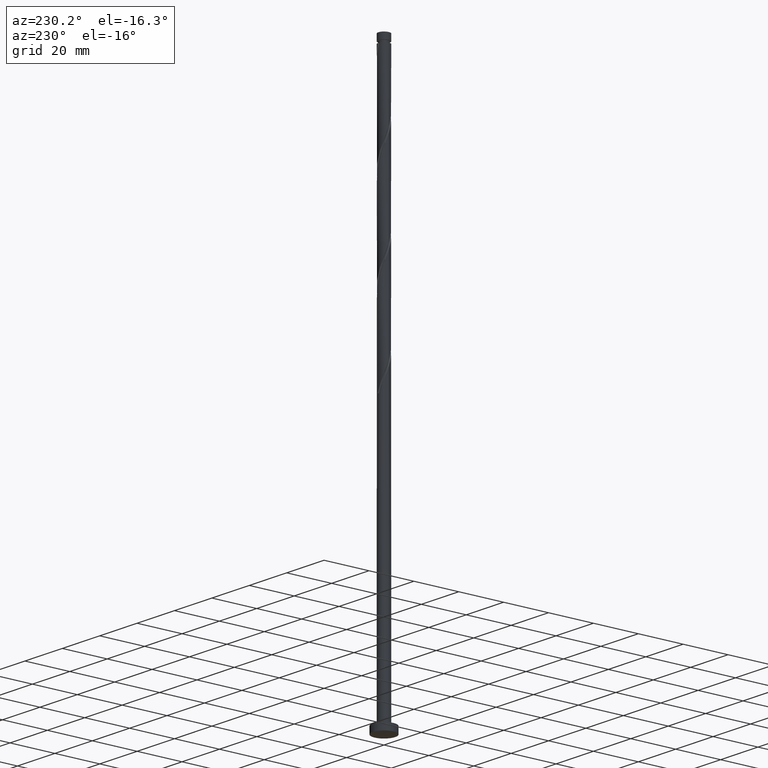
[diagram: clean part render]
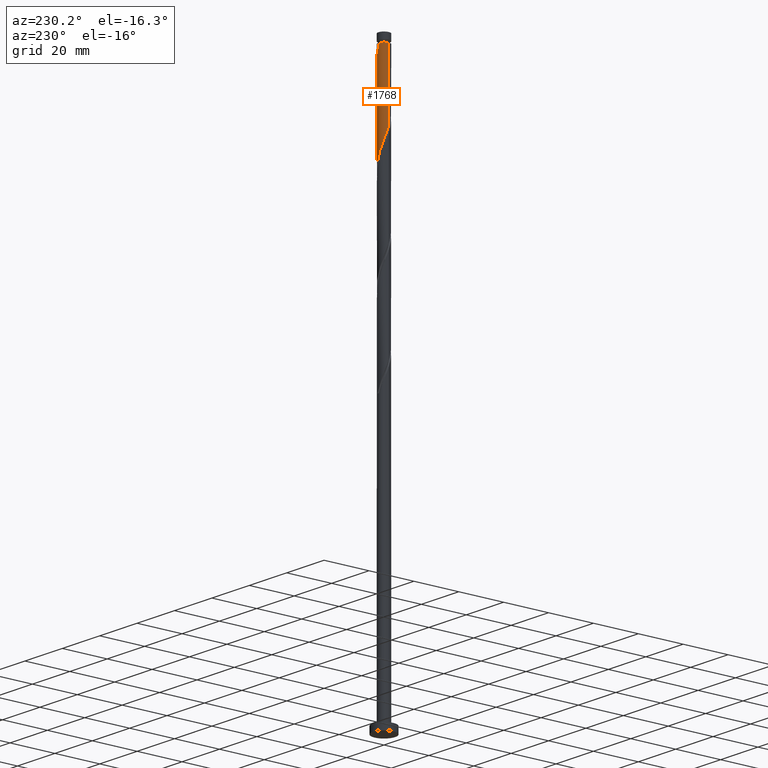
[diagram: same view with one face highlighted and labeled with its STEP entity id]
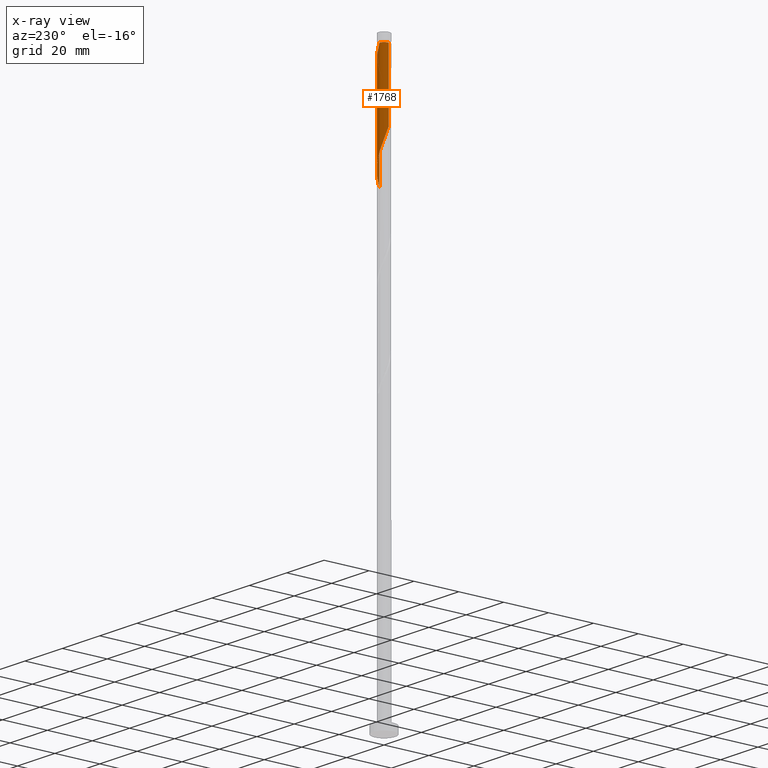
[diagram: x-ray of the same camera — body ghosted, the highlighted face saturated]
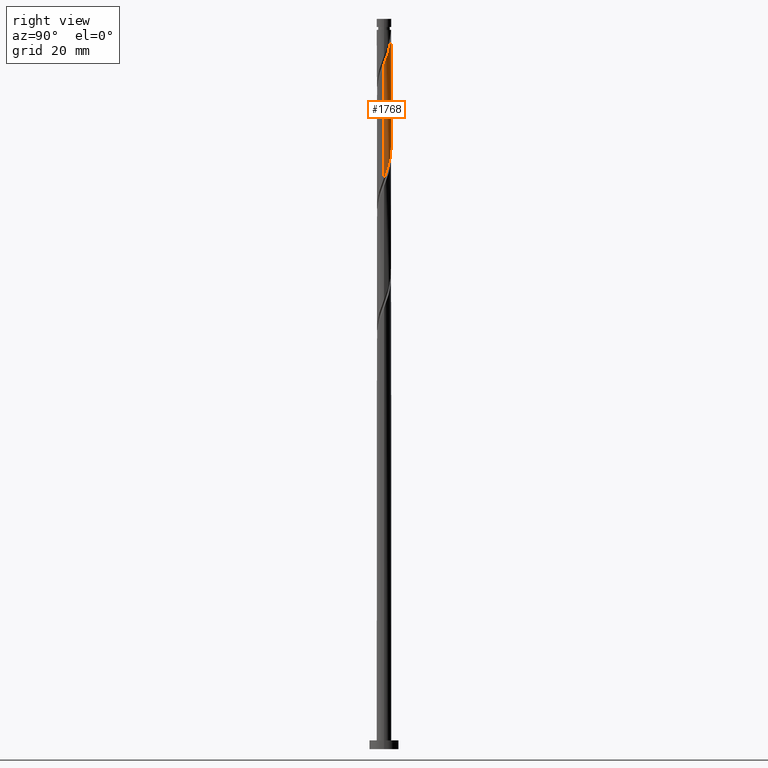
[diagram: same view with one face highlighted and labeled with its STEP entity id]
A machine part, auxiliary view. The second image highlights one B-rep face of the part: STEP entity #1768.
The next image is the same camera in x-ray: the body ghosted, the highlighted face saturated — about 0% of this face is hidden behind the body in this view.
A second angle (right view) of the same face is appended — the face is thin or edge-on in the first view.
In plain terms, the highlighted cylindrical surface (edge-blend (fillet) strip) has radius 2.5 mm, axis along (-0, -0, -1).
Its self-contained STEP definition (entity closure, byte-faithful):
#3 = CARTESIAN_POINT ( 'NONE',  ( 2.467203498451233212, 0.4036172657728990809, 196.5364304092906309 ) ) ;
#70 = CARTESIAN_POINT ( 'NONE',  ( 1.952405639219642719, 1.590678418946936290, 239.0043791272393605 ) ) ;
#143 = CARTESIAN_POINT ( 'NONE',  ( 0.000000000000000000, 0.000000000000000000, 246.2159175887778133 ) ) ;
#150 = CARTESIAN_POINT ( 'NONE',  ( 1.814417076588191957, 1.746435307918769331, 200.5428406657008509 ) ) ;
#174 = FACE_OUTER_BOUND ( 'NONE', #1698, .T. ) ;
#211 = CARTESIAN_POINT ( 'NONE',  ( -0.2000098596587720490, 2.510406673947363831, 245.4146355374958262 ) ) ;
#233 = VERTEX_POINT ( 'NONE', #617 ) ;
#238 = CARTESIAN_POINT ( 'NONE',  ( -1.952405639219638278, 1.590678418946934958, 211.7607893836495805 ) ) ;
#255 = CARTESIAN_POINT ( 'NONE',  ( -2.467994458320922568, 0.5011476491587928406, 214.9659175887778133 ) ) ;
#281 = CARTESIAN_POINT ( 'NONE',  ( 2.179642739761230352, 1.261468643909282594, 198.9402765631367629 ) ) ;
#295 = CARTESIAN_POINT ( 'NONE',  ( -2.499999999999981348, 0.000000000000000000, 246.2159175887778133 ) ) ;
#304 = CIRCLE ( 'NONE', #515, 2.499999999999981348 ) ;
#312 = CARTESIAN_POINT ( 'NONE',  ( 2.500000000000000444, 0.2031410963426076577, 196.0002068686846997 ) ) ;
#315 = VERTEX_POINT ( 'NONE', #295 ) ;
#334 = CARTESIAN_POINT ( 'NONE',  ( 2.500000000000004441, -5.309358179316672205E-16, 234.4713290462192674 ) ) ;
#378 = CARTESIAN_POINT ( 'NONE',  ( -2.372170500257938741, 0.7891812958414540224, 214.1646355374957409 ) ) ;
#406 = VERTEX_POINT ( 'NONE', #1410 ) ;
#416 = CARTESIAN_POINT ( 'NONE',  ( 2.500000000000000000, 3.061616997868383141E-16, 250.0000000000000000 ) ) ;
#422 = AXIS2_PLACEMENT_3D ( 'NONE', #1568, #880, #608 ) ;
#434 = CARTESIAN_POINT ( 'NONE',  ( -1.252271117205184581, 2.163750690124367715, 209.3569432298034485 ) ) ;
#444 = ORIENTED_EDGE ( 'NONE', *, *, #820, .F. ) ;
#456 = VERTEX_POINT ( 'NONE', #1430 ) ;
#485 = CARTESIAN_POINT ( 'NONE',  ( 0.6980629606895840666, 2.400564121808312024, 243.0107893836496373 ) ) ;
#515 = AXIS2_PLACEMENT_3D ( 'NONE', #143, #571, #1694 ) ;
#571 = DIRECTION ( 'NONE',  ( -0.000000000000000000, -0.000000000000000000, -1.000000000000000000 ) ) ;
#580 = EDGE_CURVE ( 'NONE', #456, #1135, #1789, .T. ) ;
#587 = CARTESIAN_POINT ( 'NONE',  ( -0.1032859222543189709, 2.497865492428299472, 206.1518150246752157 ) ) ;
#595 = CARTESIAN_POINT ( 'NONE',  ( -0.4065817041674112953, 2.485324310909239998, 206.9530970759572597 ) ) ;
#606 = CARTESIAN_POINT ( 'NONE',  ( 1.069360832754715940, 2.259749412959352277, 202.9466868195470397 ) ) ;
#608 = DIRECTION ( 'NONE',  ( -1.000000000000000000, 0.000000000000000000, 0.000000000000000000 ) ) ;
#617 = CARTESIAN_POINT ( 'NONE',  ( -2.499999999999999556, 4.620637209858866422E-14, 216.2938394646694746 ) ) ;
#667 = CARTESIAN_POINT ( 'NONE',  ( -2.276346542194956246, 1.077214942524114649, 213.3633534862136969 ) ) ;
#709 = CARTESIAN_POINT ( 'NONE',  ( 1.579080582324886128, 1.938170403892417237, 201.3441227169829233 ) ) ;
#716 = CARTESIAN_POINT ( 'NONE',  ( -0.6980629606895805139, 2.400564121808307583, 207.7543791272393321 ) ) ;
#744 = CYLINDRICAL_SURFACE ( 'NONE', #422, 2.500000000000000000 ) ;
#794 = CARTESIAN_POINT ( 'NONE',  ( 1.733701828209132767, 1.801187933244148498, 239.8056611785214045 ) ) ;
#802 = VECTOR ( 'NONE', #1672, 1000.000000000000000 ) ;
#803 = CARTESIAN_POINT ( 'NONE',  ( -1.733701828209129658, 1.801187933244146722, 210.9595073323675365 ) ) ;
#820 = EDGE_CURVE ( 'NONE', #315, #233, #1392, .T. ) ;
#845 = CARTESIAN_POINT ( 'NONE',  ( 1.997029908174710933, 1.503951975914025851, 199.7415586144188637 ) ) ;
#853 = CARTESIAN_POINT ( 'NONE',  ( 2.298919114669785380, 0.9823293257385155020, 198.1389945118547473 ) ) ;
#863 = CARTESIAN_POINT ( 'NONE',  ( 2.418195489578342183, 0.7031900075677459672, 197.3377124605727033 ) ) ;
#870 = CARTESIAN_POINT ( 'NONE',  ( -0.9895442172117494550, 2.315803932707376500, 208.5556611785213761 ) ) ;
#878 = CARTESIAN_POINT ( 'NONE',  ( 2.499999999999999556, 2.826672382791151800E-15, 195.4605061313363592 ) ) ;
#880 = DIRECTION ( 'NONE',  ( -0.000000000000000000, -0.000000000000000000, -1.000000000000000000 ) ) ;
#893 = CARTESIAN_POINT ( 'NONE',  ( 2.467994458320927009, 0.5011476491587928406, 235.7992509221111561 ) ) ;
#902 = CARTESIAN_POINT ( 'NONE',  ( 2.276346542194961131, 1.077214942524115093, 237.4018150246752725 ) ) ;
#911 = CARTESIAN_POINT ( 'NONE',  ( 2.372170500257943626, 0.7891812958414528012, 236.6005329733932001 ) ) ;
#938 = CARTESIAN_POINT ( 'NONE',  ( -2.492102982822523849, 0.1985515625903713222, 215.7671996400598289 ) ) ;
#973 = CARTESIAN_POINT ( 'NONE',  ( -2.499999999999999556, 4.620637209858866422E-14, 216.2938394646694746 ) ) ;
#975 = EDGE_CURVE ( 'NONE', #456, #406, #1682, .T. ) ;
#986 = EDGE_CURVE ( 'NONE', #233, #406, #1094, .T. ) ;
#999 = CARTESIAN_POINT ( 'NONE',  ( 1.343744088061578079, 2.129905499866068030, 202.1454047682649673 ) ) ;
#1030 = CARTESIAN_POINT ( 'NONE',  ( 0.4065817041674135157, 2.485324310909244883, 243.8120714349316813 ) ) ;
#1056 = CARTESIAN_POINT ( 'NONE',  ( 0.1032859222543218852, 2.497865492428304357, 244.6133534862137822 ) ) ;
#1062 = CARTESIAN_POINT ( 'NONE',  ( -0.4974937185533237494, 2.450000000000002842, 246.2159175887778133 ) ) ;
#1069 = CARTESIAN_POINT ( 'NONE',  ( 2.500000000000004885, 0.09943282584190055173, 234.7354999618521845 ) ) ;
#1094 =( BOUNDED_CURVE ( )  B_SPLINE_CURVE ( 2, ( #973, #1096, #938, #255, #378, #667, #1220, #238, #803, #1579, #434, #870, #716, #595, #587, #1549, #1122, #1834, #606, #999, #709, #150, #845, #281, #853, #863, #3, #312, #878 ),
 .UNSPECIFIED., .F., .T. ) 
 B_SPLINE_CURVE_WITH_KNOTS ( ( 3, 2, 2, 2, 2, 2, 2, 2, 2, 2, 2, 2, 2, 2, 3 ),
 ( 0.4295271625973843266, 0.4326923076923077094, 0.4423076923076922906, 0.4519230769230769273, 0.4615384615384615641, 0.4711538461538461453, 0.4807692307692307820, 0.4903846153846153633, 0.5000000000000000000, 0.5096153846153845812, 0.5192307692307692735, 0.5288461538461538547, 0.5384615384615384359, 0.5480769230769231282, 0.5545271625973834384 ),
 .UNSPECIFIED. ) 
 CURVE ( )  GEOMETRIC_REPRESENTATION_ITEM ( )  RATIONAL_B_SPLINE_CURVE ( ( 0.9061636035682938406, 0.9069090390690828229, 0.9090909090909385926, 0.9024626128164420225, 0.9090909090909385926, 0.9024626128164420225, 0.9090909090909385926, 0.9024626128164420225, 0.9090909090909385926, 0.9024626128164420225, 0.9090909090909385926, 0.9024626128164420225, 0.9090909090909385926, 0.9024626128164420225, 0.9090909090909385926, 0.9024626128164420225, 0.9090909090909385926, 0.9024626128164420225, 0.9090909090909385926, 0.9024626128164420225, 0.9090909090909385926, 0.9024626128164420225, 0.9090909090909385926, 0.9024626128164420225, 0.9090909090909385926, 0.9024626128164420225, 0.9090909090909385926, 0.9046444828382984582, 0.9061636035682933965 ) ) 
 REPRESENTATION_ITEM ( '' )  );
#1096 = CARTESIAN_POINT ( 'NONE',  ( -2.499999999999996891, 0.09943282584195486939, 216.0296685490365860 ) ) ;
#1122 = CARTESIAN_POINT ( 'NONE',  ( 0.4974937185533122586, 2.449999999999999289, 204.5492509221111561 ) ) ;
#1135 = VERTEX_POINT ( 'NONE', #1062 ) ;
#1202 = CARTESIAN_POINT ( 'NONE',  ( -0.4974937185533237494, 2.450000000000002842, 246.2159175887778133 ) ) ;
#1210 = CARTESIAN_POINT ( 'NONE',  ( 1.514998017198625258, 2.011697447541359818, 240.6069432298034769 ) ) ;
#1220 = CARTESIAN_POINT ( 'NONE',  ( -2.114376090707297706, 1.333946680735525137, 212.5620714349316529 ) ) ;
#1247 = CARTESIAN_POINT ( 'NONE',  ( -2.500000000000000000, 0.000000000000000000, 250.0000000000000000 ) ) ;
#1328 = CARTESIAN_POINT ( 'NONE',  ( 2.492102982822527846, 0.1985515625903695458, 234.9979688708291405 ) ) ;
#1331 = ORIENTED_EDGE ( 'NONE', *, *, #986, .F. ) ;
#1373 = DIRECTION ( 'NONE',  ( -0.000000000000000000, -0.000000000000000000, -1.000000000000000000 ) ) ;
#1392 = LINE ( 'NONE', #1247, #802 ) ;
#1410 = CARTESIAN_POINT ( 'NONE',  ( 2.499999999999999556, 2.826672382791151800E-15, 195.4605061313363592 ) ) ;
#1430 = CARTESIAN_POINT ( 'NONE',  ( 2.500000000000003997, -5.309358179316672205E-16, 234.4713290462192674 ) ) ;
#1455 = ORIENTED_EDGE ( 'NONE', *, *, #580, .F. ) ;
#1478 = CARTESIAN_POINT ( 'NONE',  ( 2.114376090707301259, 1.333946680735527135, 238.2030970759572597 ) ) ;
#1549 = CARTESIAN_POINT ( 'NONE',  ( 0.2000098596587735478, 2.510406673947359835, 205.3505329733932001 ) ) ;
#1568 = CARTESIAN_POINT ( 'NONE',  ( 0.000000000000000000, 0.000000000000000000, 250.0000000000000000 ) ) ;
#1569 = ORIENTED_EDGE ( 'NONE', *, *, #1693, .T. ) ;
#1579 = CARTESIAN_POINT ( 'NONE',  ( -1.514998017198620373, 2.011697447541358041, 210.1582252810855209 ) ) ;
#1610 = CARTESIAN_POINT ( 'NONE',  ( 0.9895442172117521196, 2.315803932707379609, 242.2095073323676218 ) ) ;
#1672 = DIRECTION ( 'NONE',  ( -0.000000000000000000, -0.000000000000000000, -1.000000000000000000 ) ) ;
#1682 = LINE ( 'NONE', #416, #1690 ) ;
#1690 = VECTOR ( 'NONE', #1373, 1000.000000000000000 ) ;
#1693 = EDGE_CURVE ( 'NONE', #315, #1135, #304, .T. ) ;
#1694 = DIRECTION ( 'NONE',  ( -1.000000000000000000, 0.000000000000000000, 0.000000000000000000 ) ) ;
#1698 = EDGE_LOOP ( 'NONE', ( #1455, #1809, #1331, #444, #1569 ) ) ;
#1768 = ADVANCED_FACE ( 'NONE', ( #174 ), #744, .T. ) ;
#1772 = CARTESIAN_POINT ( 'NONE',  ( 1.252271117205188355, 2.163750690124370379, 241.4082252810854925 ) ) ;
#1789 =( BOUNDED_CURVE ( )  B_SPLINE_CURVE ( 2, ( #334, #1069, #1328, #893, #911, #902, #1478, #70, #794, #1210, #1772, #1610, #485, #1030, #1056, #211, #1202 ),
 .UNSPECIFIED., .F., .T. ) 
 B_SPLINE_CURVE_WITH_KNOTS ( ( 3, 2, 2, 2, 2, 2, 2, 2, 3 ),
 ( 0.6795271625973826612, 0.6826923076923077094, 0.6923076923076922906, 0.7019230769230768718, 0.7115384615384615641, 0.7211538461538461453, 0.7307692307692308376, 0.7403846153846154188, 0.7500000000000000000 ),
 .UNSPECIFIED. ) 
 CURVE ( )  GEOMETRIC_REPRESENTATION_ITEM ( )  RATIONAL_B_SPLINE_CURVE ( ( 0.9061636035682998358, 0.9069090390690883741, 0.9090909090909453649, 0.9024626128164486838, 0.9090909090909453649, 0.9024626128164486838, 0.9090909090909453649, 0.9024626128164486838, 0.9090909090909453649, 0.9024626128164486838, 0.9090909090909453649, 0.9024626128164486838, 0.9090909090909453649, 0.9024626128164486838, 0.9090909090909453649, 0.9024626128164486838, 0.9090909090909453649 ) ) 
 REPRESENTATION_ITEM ( '' )  );
#1809 = ORIENTED_EDGE ( 'NONE', *, *, #975, .T. ) ;
#1834 = CARTESIAN_POINT ( 'NONE',  ( 0.7949775774478513579, 2.389593326052638300, 203.7479688708290553 ) ) ;